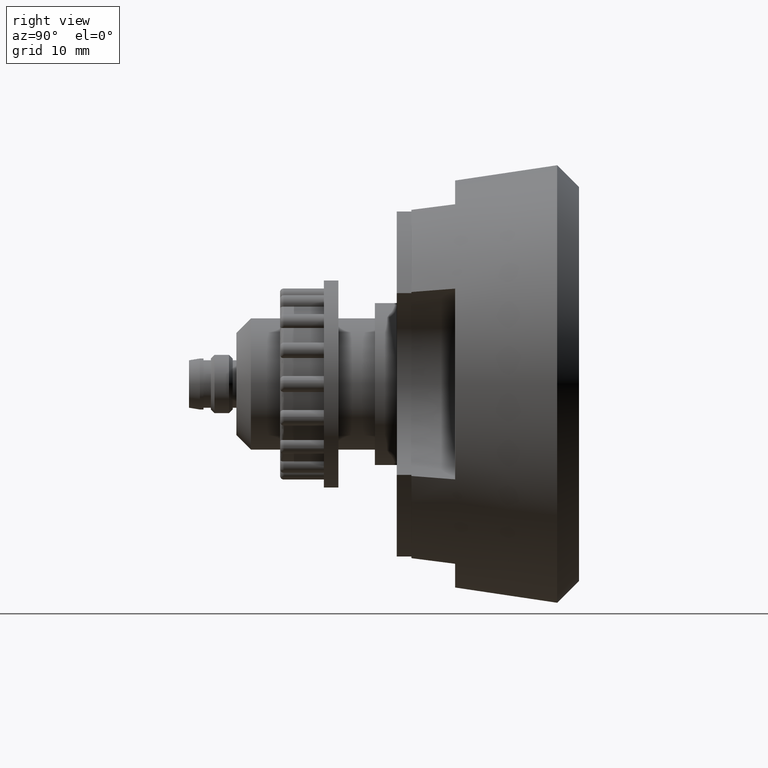
[diagram: clean part render]
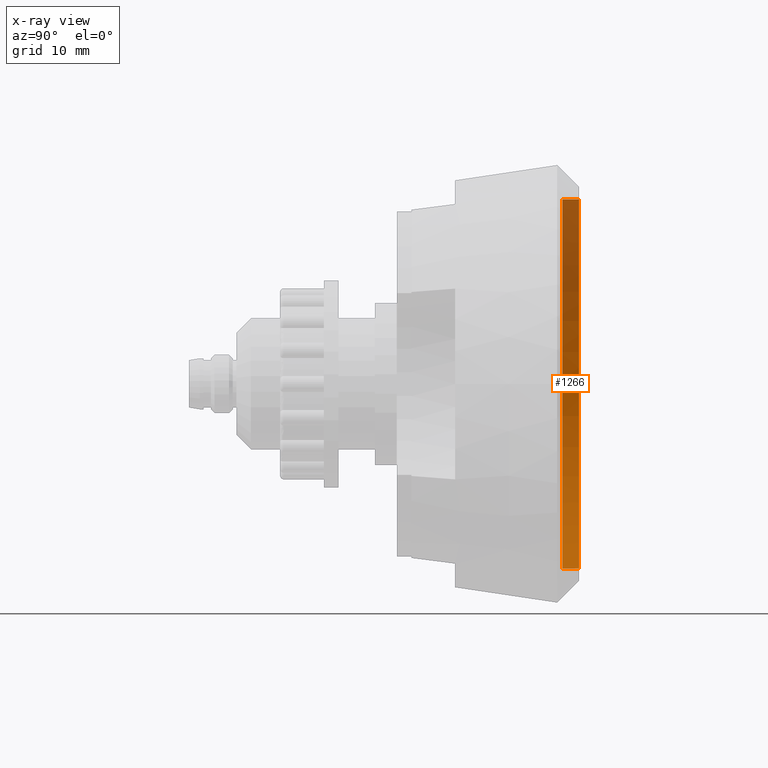
[diagram: x-ray — body ghosted, one internal face saturated and labeled with its STEP entity id]
A machine part, right view, then the same camera in x-ray: the body is ghosted and one INTERNAL B-rep face — a face not visible from any outside direction — is saturated and labeled: STEP entity #1266.
In plain terms, the highlighted cylindrical surface (partial cylindrical patch) has radius 25.3 mm, axis along (-0, -1, -0).
Its self-contained STEP definition (entity closure, byte-faithful):
#242 = EDGE_CURVE ( 'NONE', #6858, #3489, #5350, .T. ) ;
#421 = ORIENTED_EDGE ( 'NONE', *, *, #4780, .T. ) ;
#439 = DIRECTION ( 'NONE',  ( -0.0000000000000000000, -1.000000000000000000, -0.0000000000000000000 ) ) ;
#442 = CARTESIAN_POINT ( 'NONE',  ( 3.098356401842803508E-15, 44.70000000000003837, 25.30000000000000071 ) ) ;
#610 = DIRECTION ( 'NONE',  ( -0.0000000000000000000, -1.000000000000000000, -0.0000000000000000000 ) ) ;
#906 = CARTESIAN_POINT ( 'NONE',  ( 0.0000000000000000000, 47.00000000000004263, -25.30000000000000071 ) ) ;
#1046 = DIRECTION ( 'NONE',  ( 0.0000000000000000000, 0.0000000000000000000, -1.000000000000000000 ) ) ;
#1266 = ADVANCED_FACE ( 'NONE', ( #5828 ), #4882, .T. ) ;
#1610 = DIRECTION ( 'NONE',  ( 0.0000000000000000000, 1.000000000000000000, -0.0000000000000000000 ) ) ;
#1970 = DIRECTION ( 'NONE',  ( 0.0000000000000000000, 0.0000000000000000000, -1.000000000000000000 ) ) ;
#2015 = ORIENTED_EDGE ( 'NONE', *, *, #5939, .F. ) ;
#2660 = CARTESIAN_POINT ( 'NONE',  ( 0.0000000000000000000, 44.70000000000003837, -9.629649721936179265E-32 ) ) ;
#2738 = EDGE_CURVE ( 'NONE', #5660, #6858, #3324, .T. ) ;
#3041 = ORIENTED_EDGE ( 'NONE', *, *, #2738, .T. ) ;
#3324 = LINE ( 'NONE', #6515, #4476 ) ;
#3375 = AXIS2_PLACEMENT_3D ( 'NONE', #2660, #1610, #5579 ) ;
#3489 = VERTEX_POINT ( 'NONE', #442 ) ;
#3548 = ORIENTED_EDGE ( 'NONE', *, *, #242, .T. ) ;
#3662 = DIRECTION ( 'NONE',  ( -0.0000000000000000000, -1.000000000000000000, -0.0000000000000000000 ) ) ;
#3954 = CARTESIAN_POINT ( 'NONE',  ( 0.0000000000000000000, 44.70000000000003837, -25.30000000000000071 ) ) ;
#4140 = EDGE_LOOP ( 'NONE', ( #2015, #421, #3041, #3548 ) ) ;
#4476 = VECTOR ( 'NONE', #610, 1000.000000000000000 ) ;
#4630 = CIRCLE ( 'NONE', #4742, 25.30000000000000071 ) ;
#4648 = VERTEX_POINT ( 'NONE', #6535 ) ;
#4742 = AXIS2_PLACEMENT_3D ( 'NONE', #5877, #4818, #1970 ) ;
#4780 = EDGE_CURVE ( 'NONE', #4648, #5660, #4630, .T. ) ;
#4818 = DIRECTION ( 'NONE',  ( -0.0000000000000000000, -1.000000000000000000, -0.0000000000000000000 ) ) ;
#4882 = CYLINDRICAL_SURFACE ( 'NONE', #5021, 25.30000000000000071 ) ;
#5021 = AXIS2_PLACEMENT_3D ( 'NONE', #5338, #3662, #1046 ) ;
#5338 = CARTESIAN_POINT ( 'NONE',  ( 0.0000000000000000000, 32.90000000000004121, -9.629649721936179265E-32 ) ) ;
#5350 = CIRCLE ( 'NONE', #3375, 25.30000000000000071 ) ;
#5579 = DIRECTION ( 'NONE',  ( 0.0000000000000000000, 0.0000000000000000000, 1.000000000000000000 ) ) ;
#5660 = VERTEX_POINT ( 'NONE', #906 ) ;
#5743 = VECTOR ( 'NONE', #439, 1000.000000000000000 ) ;
#5828 = FACE_OUTER_BOUND ( 'NONE', #4140, .T. ) ;
#5877 = CARTESIAN_POINT ( 'NONE',  ( 0.0000000000000000000, 47.00000000000004263, -9.629649721936179265E-32 ) ) ;
#5939 = EDGE_CURVE ( 'NONE', #4648, #3489, #6528, .T. ) ;
#6003 = CARTESIAN_POINT ( 'NONE',  ( 3.098356401842803508E-15, 32.90000000000004121, 25.30000000000000071 ) ) ;
#6515 = CARTESIAN_POINT ( 'NONE',  ( 0.0000000000000000000, 32.90000000000004121, -25.30000000000000071 ) ) ;
#6528 = LINE ( 'NONE', #6003, #5743 ) ;
#6535 = CARTESIAN_POINT ( 'NONE',  ( 3.098356401842803508E-15, 47.00000000000004263, 25.30000000000000071 ) ) ;
#6858 = VERTEX_POINT ( 'NONE', #3954 ) ;